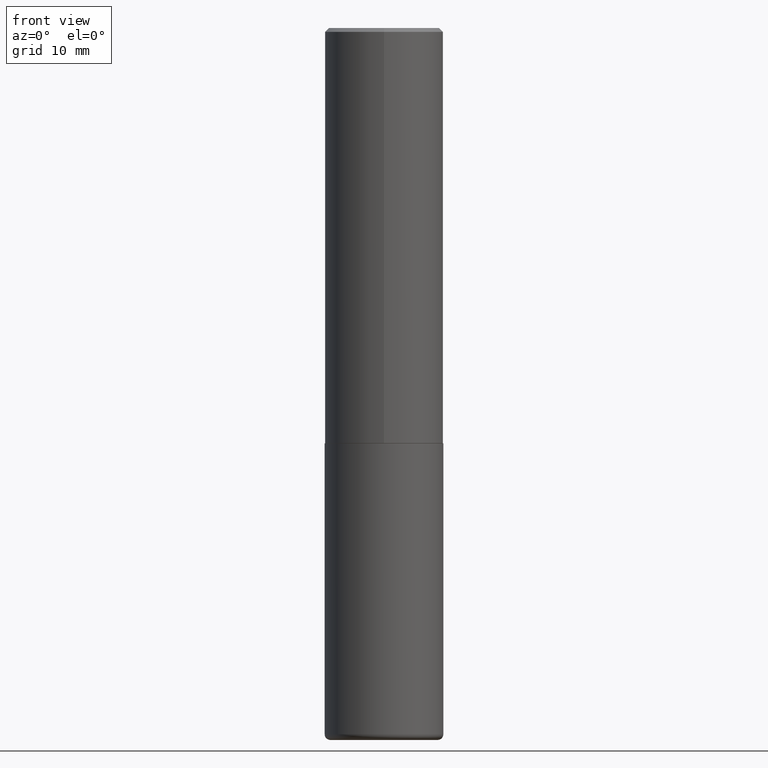
[diagram: clean part render]
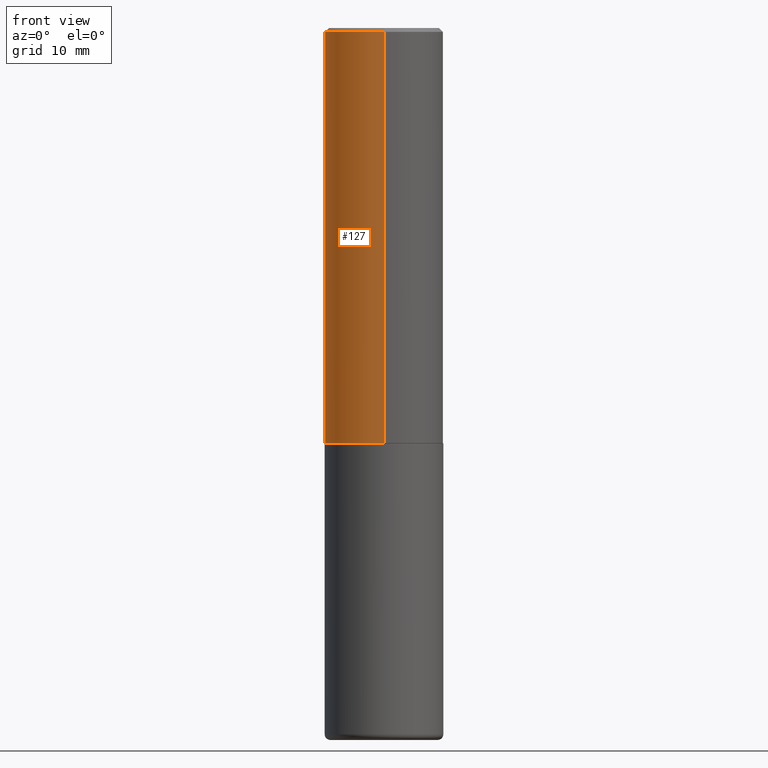
[diagram: same view with one face highlighted and labeled with its STEP entity id]
A machine part, front view. The second image highlights one B-rep face of the part: STEP entity #127.
In plain terms, the highlighted cylindrical surface (partial cylindrical patch) has radius 7.9375 mm, axis along (-0, 0, 1).
Its self-contained STEP definition (entity closure, byte-faithful):
#3 = VERTEX_POINT ( 'NONE', #96 ) ;
#5 = DIRECTION ( 'NONE',  ( -2.444624669075078147E-29, 3.492690191230049832E-15, 1.000000000000000000 ) ) ;
#7 = CIRCLE ( 'NONE', #77, 0.3124999999999999445 ) ;
#14 = VERTEX_POINT ( 'NONE', #283 ) ;
#48 = CYLINDRICAL_SURFACE ( 'NONE', #397, 0.3125000000000001665 ) ;
#52 = DIRECTION ( 'NONE',  ( -6.982962677686265133E-15, -1.000000000000000000, 3.496765431890257708E-15 ) ) ;
#53 = AXIS2_PLACEMENT_3D ( 'NONE', #395, #229, #292 ) ;
#66 = ORIENTED_EDGE ( 'NONE', *, *, #336, .T. ) ;
#70 = VERTEX_POINT ( 'NONE', #317 ) ;
#77 = AXIS2_PLACEMENT_3D ( 'NONE', #162, #183, #52 ) ;
#80 = LINE ( 'NONE', #271, #350 ) ;
#91 = VERTEX_POINT ( 'NONE', #409 ) ;
#96 = CARTESIAN_POINT ( 'NONE',  ( -2.143905624303602430E-15, -0.3125000000000000000, -0.01999999999999897693 ) ) ;
#105 = ORIENTED_EDGE ( 'NONE', *, *, #403, .T. ) ;
#127 = ADVANCED_FACE ( 'NONE', ( #259 ), #48, .T. ) ;
#159 = CARTESIAN_POINT ( 'NONE',  ( 0.000000000000000000, 0.000000000000000000, 0.000000000000000000 ) ) ;
#162 = CARTESIAN_POINT ( 'NONE',  ( 4.889249338150173284E-31, -6.985380382460124119E-17, -0.02000000000000006981 ) ) ;
#167 = ORIENTED_EDGE ( 'NONE', *, *, #256, .F. ) ;
#183 = DIRECTION ( 'NONE',  ( -2.444624669075078147E-29, 3.492690191230049832E-15, 1.000000000000000000 ) ) ;
#202 = CARTESIAN_POINT ( 'NONE',  ( 2.220446049250313475E-15, 0.3125000000000001665, -1.091465684759391066E-15 ) ) ;
#229 = DIRECTION ( 'NONE',  ( -2.444624669075078147E-29, 3.492690191230049832E-15, 1.000000000000000000 ) ) ;
#233 = DIRECTION ( 'NONE',  ( -6.982962677686265133E-15, -1.000000000000000000, 3.492690191230049438E-15 ) ) ;
#237 = CIRCLE ( 'NONE', #53, 0.3125000000000002776 ) ;
#249 = VECTOR ( 'NONE', #366, 39.37007874015748143 ) ;
#256 = EDGE_CURVE ( 'NONE', #14, #70, #364, .T. ) ;
#259 = FACE_OUTER_BOUND ( 'NONE', #318, .T. ) ;
#268 = EDGE_CURVE ( 'NONE', #70, #3, #7, .T. ) ;
#271 = CARTESIAN_POINT ( 'NONE',  ( -2.182175836776959136E-15, -0.3125000000000001665, 1.091465684759391066E-15 ) ) ;
#283 = CARTESIAN_POINT ( 'NONE',  ( 2.220446049250340691E-15, 0.3124999999999926170, -2.186500000000000998 ) ) ;
#292 = DIRECTION ( 'NONE',  ( -6.982962677686265922E-15, -1.000000000000000000, 3.496765431890253764E-15 ) ) ;
#317 = CARTESIAN_POINT ( 'NONE',  ( 2.182175836776957953E-15, 0.3124999999999998890, -0.02000000000000116268 ) ) ;
#318 = EDGE_LOOP ( 'NONE', ( #167, #66, #105, #394 ) ) ;
#336 = EDGE_CURVE ( 'NONE', #14, #91, #237, .T. ) ;
#350 = VECTOR ( 'NONE', #406, 39.37007874015748143 ) ;
#364 = LINE ( 'NONE', #202, #249 ) ;
#366 = DIRECTION ( 'NONE',  ( -2.444624669075078147E-29, 3.492690191230049832E-15, 1.000000000000000000 ) ) ;
#394 = ORIENTED_EDGE ( 'NONE', *, *, #268, .F. ) ;
#395 = CARTESIAN_POINT ( 'NONE',  ( 5.345171838932658035E-29, -7.636767103124503877E-15, -2.186500000000000110 ) ) ;
#397 = AXIS2_PLACEMENT_3D ( 'NONE', #159, #5, #233 ) ;
#403 = EDGE_CURVE ( 'NONE', #91, #3, #80, .T. ) ;
#406 = DIRECTION ( 'NONE',  ( -2.444624669075078147E-29, 3.492690191230049832E-15, 1.000000000000000000 ) ) ;
#409 = CARTESIAN_POINT ( 'NONE',  ( -2.182175836776906677E-15, -0.3125000000000079381, -2.186499999999998778 ) ) ;